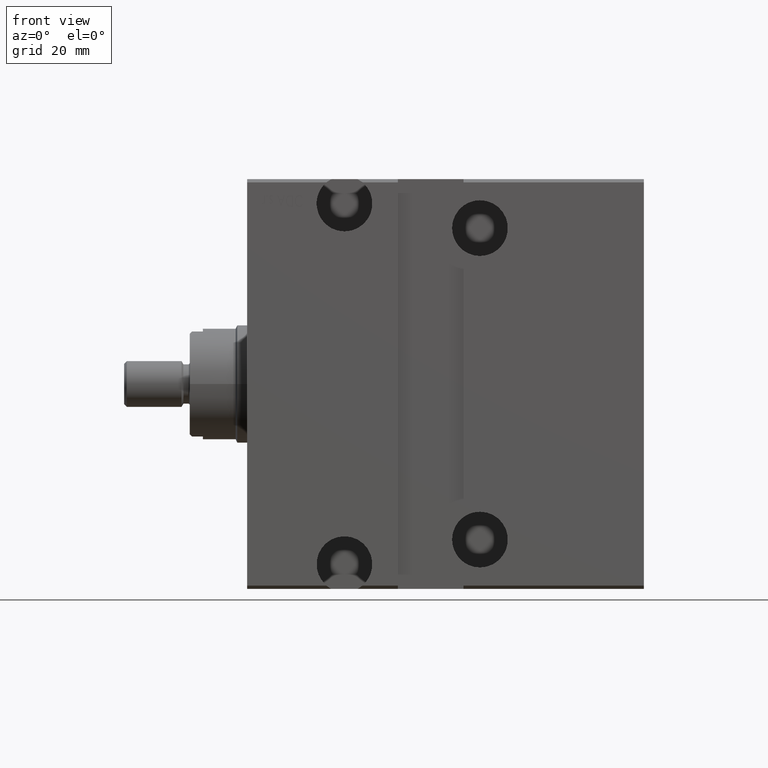
[diagram: clean part render]
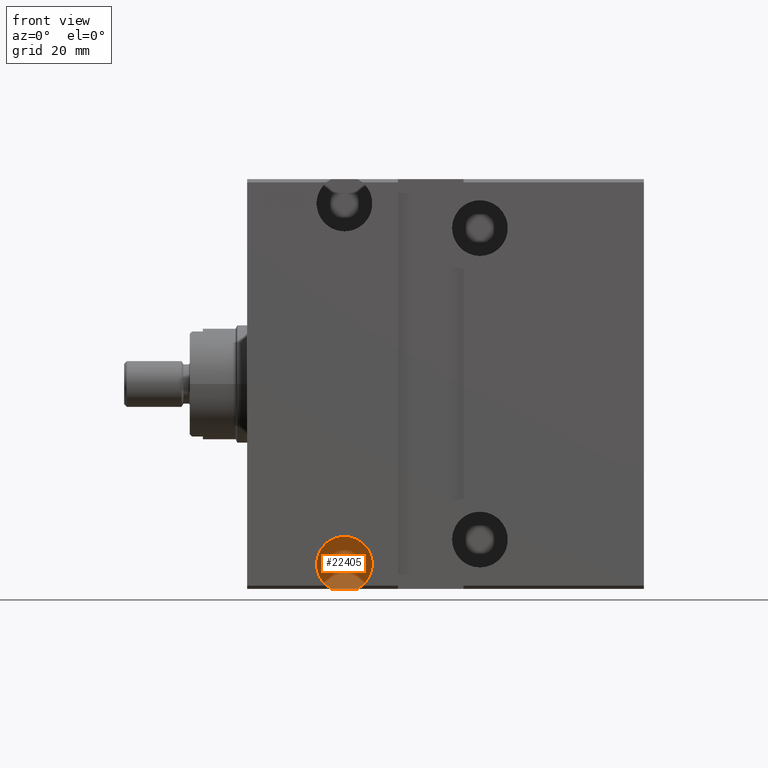
[diagram: same view with one face highlighted and labeled with its STEP entity id]
A machine part, front view. The second image highlights one B-rep face of the part: STEP entity #22405.
In plain terms, the highlighted planar face has unit normal (0, -1, -0).
Its self-contained STEP definition (entity closure, byte-faithful):
#3344 = CARTESIAN_POINT ( 'NONE',  ( 25.67506805813225768, 42.50000000000001421, -62.50000000000000000 ) ) ;
#3979 = DIRECTION ( 'NONE',  ( 0.000000000000000000, -1.000000000000000000, -5.507058653894625853E-17 ) ) ;
#4550 = EDGE_CURVE ( 'NONE', #5489, #25912, #29623, .T. ) ;
#4911 = AXIS2_PLACEMENT_3D ( 'NONE', #21699, #3979, #7121 ) ;
#5489 = VERTEX_POINT ( 'NONE', #14472 ) ;
#6689 = ORIENTED_EDGE ( 'NONE', *, *, #10631, .T. ) ;
#7121 = DIRECTION ( 'NONE',  ( 0.000000000000000000, 5.507058653894625853E-17, -1.000000000000000000 ) ) ;
#9107 = EDGE_LOOP ( 'NONE', ( #6689, #22012 ) ) ;
#10631 = EDGE_CURVE ( 'NONE', #25912, #5489, #11382, .T. ) ;
#11382 = LINE ( 'NONE', #38330, #25958 ) ;
#14472 = CARTESIAN_POINT ( 'NONE',  ( 33.67506805813231807, 42.50000000000001421, -62.50000000000000000 ) ) ;
#17866 = DIRECTION ( 'NONE',  ( 1.000000000000000000, 0.000000000000000000, 0.000000000000000000 ) ) ;
#19133 = PLANE ( 'NONE',  #4911 ) ;
#21348 = DIRECTION ( 'NONE',  ( 0.000000000000000000, 0.000000000000000000, -1.000000000000000000 ) ) ;
#21699 = CARTESIAN_POINT ( 'NONE',  ( 29.67506805813228965, 42.50000000000001421, -55.00000000000002132 ) ) ;
#21735 = DIRECTION ( 'NONE',  ( 0.000000000000000000, -1.000000000000000000, -5.507058653894625853E-17 ) ) ;
#22012 = ORIENTED_EDGE ( 'NONE', *, *, #4550, .T. ) ;
#22405 = ADVANCED_FACE ( 'NONE', ( #27984 ), #19133, .T. ) ;
#24295 = CARTESIAN_POINT ( 'NONE',  ( 29.67506805813228965, 42.50000000000001421, -55.00000000000002132 ) ) ;
#25912 = VERTEX_POINT ( 'NONE', #3344 ) ;
#25958 = VECTOR ( 'NONE', #17866, 1000.000000000000000 ) ;
#27755 = AXIS2_PLACEMENT_3D ( 'NONE', #24295, #21735, #21348 ) ;
#27984 = FACE_OUTER_BOUND ( 'NONE', #9107, .T. ) ;
#29623 = CIRCLE ( 'NONE', #27755, 8.499999999999992895 ) ;
#38330 = CARTESIAN_POINT ( 'NONE',  ( 121.0000000000000000, 42.50000000000002132, -62.50000000000000000 ) ) ;